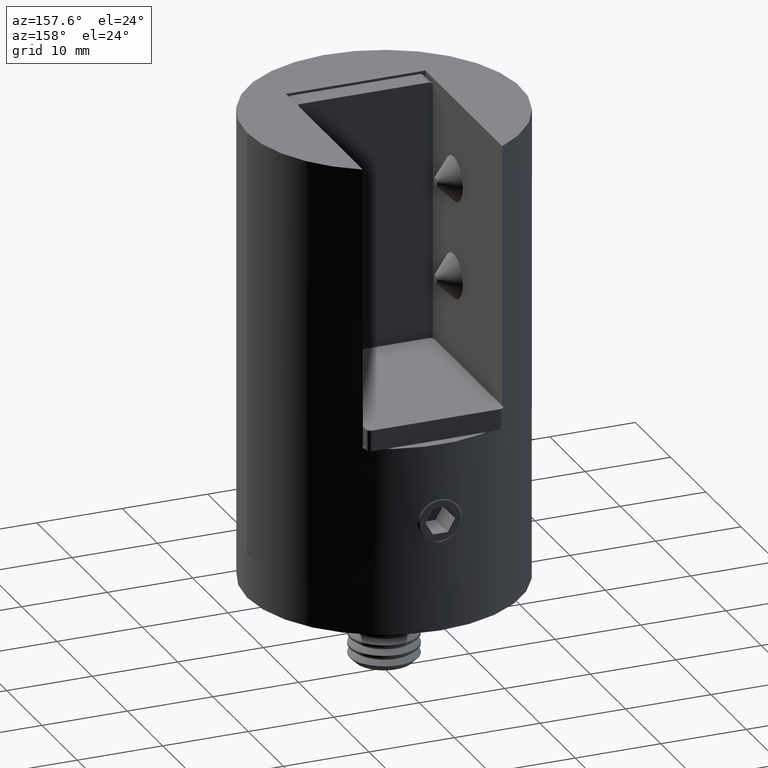
[diagram: clean part render]
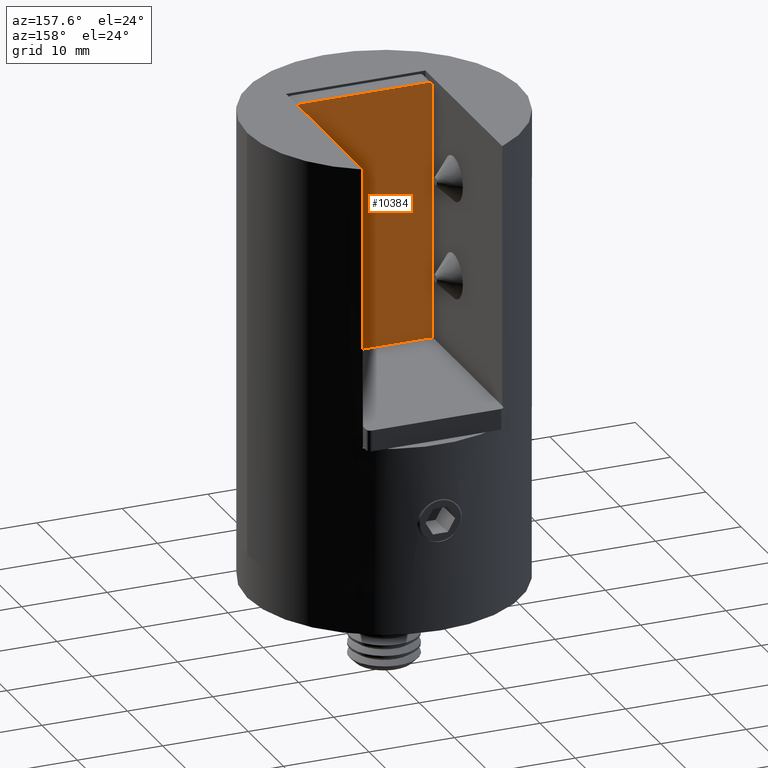
[diagram: same view with one face highlighted and labeled with its STEP entity id]
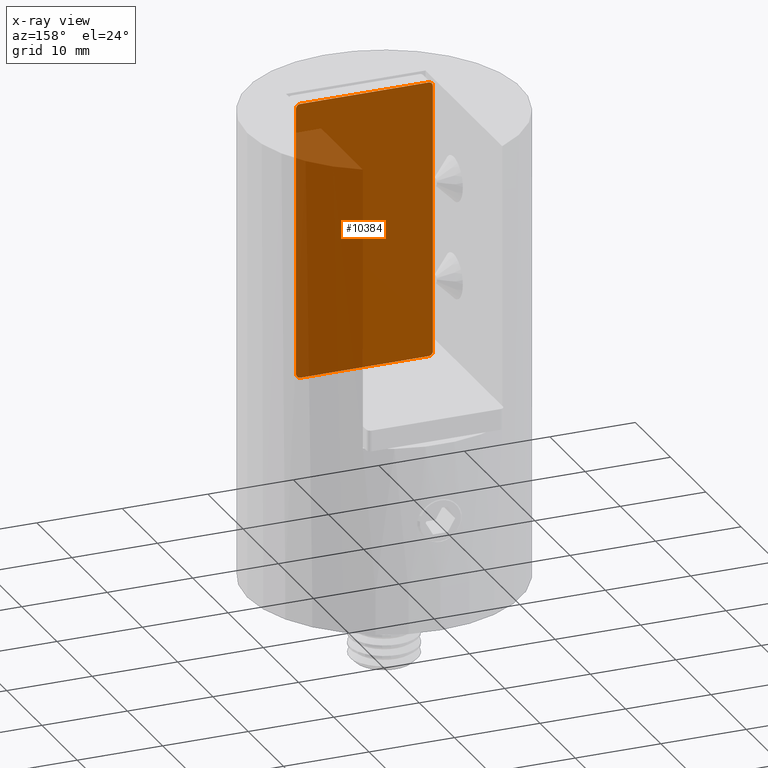
[diagram: x-ray of the same camera — body ghosted, the highlighted face saturated]
A machine part, auxiliary view. The second image highlights one B-rep face of the part: STEP entity #10384.
The next image is the same camera in x-ray: the body ghosted, the highlighted face saturated — about 41% of this face is hidden behind the body in this view.
In plain terms, the highlighted planar face has unit normal (0, -1, -0).
Its self-contained STEP definition (entity closure, byte-faithful):
#401 = VERTEX_POINT ( 'NONE', #13034 ) ;
#491 = EDGE_CURVE ( 'NONE', #4832, #10487, #8047, .T. ) ;
#499 = DIRECTION ( 'NONE',  ( 0.000000000000000000, 0.000000000000000000, -1.000000000000000000 ) ) ;
#739 = AXIS2_PLACEMENT_3D ( 'NONE', #6571, #17944, #11447 ) ;
#1289 = CARTESIAN_POINT ( 'NONE',  ( -16.19999999999999929, 2.450000000000000178, -7.499999999999996447 ) ) ;
#1470 = CARTESIAN_POINT ( 'NONE',  ( 15.69999999999999929, 2.450000000000000178, -7.500000000000000000 ) ) ;
#2120 = VECTOR ( 'NONE', #7564, 1000.000000000000000 ) ;
#2130 = CARTESIAN_POINT ( 'NONE',  ( 15.69999999999999574, 2.450000000000000178, -8.000000000000000000 ) ) ;
#2174 = CARTESIAN_POINT ( 'NONE',  ( 15.69999999999999929, 2.450000000000000178, 7.500000000000000000 ) ) ;
#3297 = CARTESIAN_POINT ( 'NONE',  ( -15.69999999999999574, 2.450000000000000178, -8.000000000000000000 ) ) ;
#3429 = DIRECTION ( 'NONE',  ( 1.000000000000000000, 0.000000000000000000, 0.000000000000000000 ) ) ;
#4186 = PLANE ( 'NONE',  #9489 ) ;
#4300 = EDGE_CURVE ( 'NONE', #15449, #20935, #9210, .T. ) ;
#4832 = VERTEX_POINT ( 'NONE', #1289 ) ;
#5020 = DIRECTION ( 'NONE',  ( 0.000000000000000000, 1.000000000000000000, 0.000000000000000000 ) ) ;
#5949 = DIRECTION ( 'NONE',  ( 0.000000000000000000, -1.000000000000000000, 0.000000000000000000 ) ) ;
#6026 = DIRECTION ( 'NONE',  ( 0.000000000000000000, 1.000000000000000000, 0.000000000000000000 ) ) ;
#6244 = EDGE_CURVE ( 'NONE', #20935, #6751, #18087, .T. ) ;
#6306 = DIRECTION ( 'NONE',  ( 0.000000000000000000, 0.000000000000000000, 1.000000000000000000 ) ) ;
#6471 = AXIS2_PLACEMENT_3D ( 'NONE', #2174, #6026, #6306 ) ;
#6509 = DIRECTION ( 'NONE',  ( 0.000000000000000000, 1.000000000000000000, 0.000000000000000000 ) ) ;
#6524 = DIRECTION ( 'NONE',  ( 0.000000000000000000, 0.000000000000000000, 1.000000000000000000 ) ) ;
#6571 = CARTESIAN_POINT ( 'NONE',  ( -15.69999999999999929, 2.450000000000000178, -7.500000000000000000 ) ) ;
#6598 = VECTOR ( 'NONE', #499, 1000.000000000000000 ) ;
#6751 = VERTEX_POINT ( 'NONE', #17962 ) ;
#7188 = ORIENTED_EDGE ( 'NONE', *, *, #10669, .F. ) ;
#7324 = EDGE_CURVE ( 'NONE', #401, #19822, #20105, .T. ) ;
#7564 = DIRECTION ( 'NONE',  ( 1.000000000000000000, 0.000000000000000000, 0.000000000000000000 ) ) ;
#7644 = CARTESIAN_POINT ( 'NONE',  ( -15.69999999999999929, 2.450000000000000178, -7.500000000000000000 ) ) ;
#8047 = CIRCLE ( 'NONE', #739, 0.5000000000000004441 ) ;
#8449 = CARTESIAN_POINT ( 'NONE',  ( 16.19999999999999929, 2.450000000000000178, 7.499999999999996447 ) ) ;
#8770 = LINE ( 'NONE', #3297, #13852 ) ;
#9191 = DIRECTION ( 'NONE',  ( 0.000000000000000000, -0.000000000000000000, -1.000000000000000000 ) ) ;
#9210 = CIRCLE ( 'NONE', #6471, 0.5000000000000004441 ) ;
#9321 = CARTESIAN_POINT ( 'NONE',  ( -15.69999999999999574, 2.450000000000000178, -8.000000000000000000 ) ) ;
#9489 = AXIS2_PLACEMENT_3D ( 'NONE', #7644, #5949, #9191 ) ;
#10272 = CARTESIAN_POINT ( 'NONE',  ( 16.19999999999999929, 2.450000000000000178, 7.499999999999996447 ) ) ;
#10384 = ADVANCED_FACE ( 'NONE', ( #16923 ), #4186, .F. ) ;
#10478 = VECTOR ( 'NONE', #13509, 1000.000000000000000 ) ;
#10487 = VERTEX_POINT ( 'NONE', #9321 ) ;
#10669 = EDGE_CURVE ( 'NONE', #10487, #10805, #8770, .T. ) ;
#10805 = VERTEX_POINT ( 'NONE', #2130 ) ;
#11113 = DIRECTION ( 'NONE',  ( 0.000000000000000000, 0.000000000000000000, 1.000000000000000000 ) ) ;
#11128 = ORIENTED_EDGE ( 'NONE', *, *, #19657, .T. ) ;
#11447 = DIRECTION ( 'NONE',  ( 0.000000000000000000, 0.000000000000000000, -1.000000000000000000 ) ) ;
#11877 = AXIS2_PLACEMENT_3D ( 'NONE', #1470, #5020, #6524 ) ;
#12778 = ORIENTED_EDGE ( 'NONE', *, *, #15197, .F. ) ;
#13034 = CARTESIAN_POINT ( 'NONE',  ( -16.19999999999999929, 2.450000000000000178, 7.499999999999996447 ) ) ;
#13134 = CARTESIAN_POINT ( 'NONE',  ( -16.19999999999999929, 2.450000000000000178, 7.499999999999996447 ) ) ;
#13509 = DIRECTION ( 'NONE',  ( 0.000000000000000000, 0.000000000000000000, -1.000000000000000000 ) ) ;
#13852 = VECTOR ( 'NONE', #3429, 1000.000000000000000 ) ;
#13983 = EDGE_LOOP ( 'NONE', ( #19268, #12778, #19980, #17544, #20172, #19135, #11128, #7188 ) ) ;
#14233 = CARTESIAN_POINT ( 'NONE',  ( -15.69999999999999574, 2.450000000000000178, 8.000000000000000000 ) ) ;
#15197 = EDGE_CURVE ( 'NONE', #401, #4832, #15245, .T. ) ;
#15245 = LINE ( 'NONE', #13134, #6598 ) ;
#15260 = CIRCLE ( 'NONE', #11877, 0.5000000000000004441 ) ;
#15342 = LINE ( 'NONE', #15596, #2120 ) ;
#15449 = VERTEX_POINT ( 'NONE', #19012 ) ;
#15596 = CARTESIAN_POINT ( 'NONE',  ( -15.69999999999999574, 2.450000000000000178, 8.000000000000000000 ) ) ;
#15647 = EDGE_CURVE ( 'NONE', #19822, #15449, #15342, .T. ) ;
#16167 = AXIS2_PLACEMENT_3D ( 'NONE', #16238, #6509, #11113 ) ;
#16238 = CARTESIAN_POINT ( 'NONE',  ( -15.69999999999999929, 2.450000000000000178, 7.500000000000000000 ) ) ;
#16923 = FACE_OUTER_BOUND ( 'NONE', #13983, .T. ) ;
#17544 = ORIENTED_EDGE ( 'NONE', *, *, #15647, .T. ) ;
#17944 = DIRECTION ( 'NONE',  ( -0.000000000000000000, -1.000000000000000000, 0.000000000000000000 ) ) ;
#17962 = CARTESIAN_POINT ( 'NONE',  ( 16.19999999999999929, 2.450000000000000178, -7.499999999999996447 ) ) ;
#18087 = LINE ( 'NONE', #8449, #10478 ) ;
#19012 = CARTESIAN_POINT ( 'NONE',  ( 15.69999999999999574, 2.450000000000000178, 8.000000000000000000 ) ) ;
#19135 = ORIENTED_EDGE ( 'NONE', *, *, #6244, .T. ) ;
#19268 = ORIENTED_EDGE ( 'NONE', *, *, #491, .F. ) ;
#19657 = EDGE_CURVE ( 'NONE', #6751, #10805, #15260, .T. ) ;
#19822 = VERTEX_POINT ( 'NONE', #14233 ) ;
#19980 = ORIENTED_EDGE ( 'NONE', *, *, #7324, .T. ) ;
#20105 = CIRCLE ( 'NONE', #16167, 0.5000000000000004441 ) ;
#20172 = ORIENTED_EDGE ( 'NONE', *, *, #4300, .T. ) ;
#20935 = VERTEX_POINT ( 'NONE', #10272 ) ;